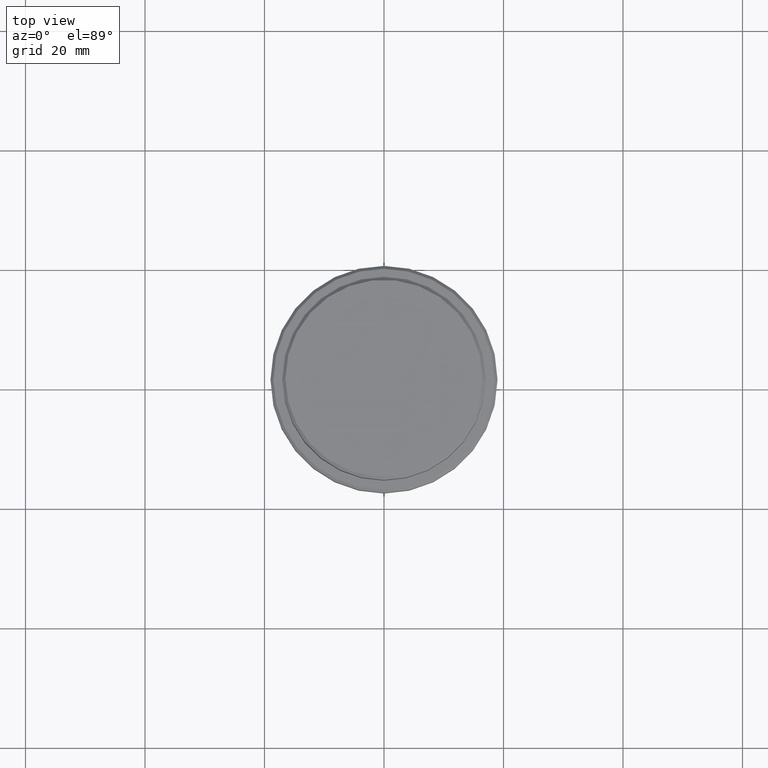
[diagram: clean part render]
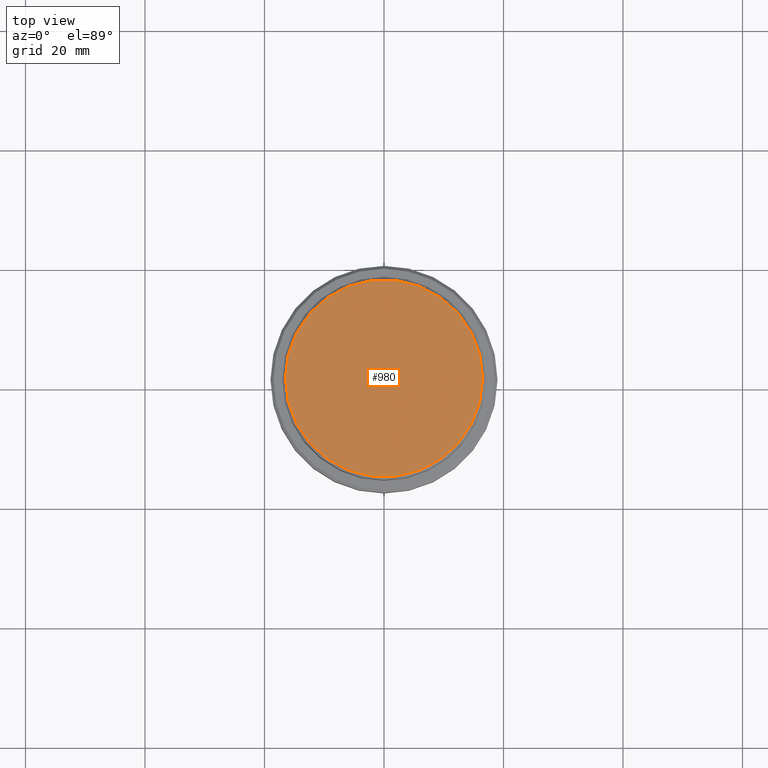
[diagram: same view with one face highlighted and labeled with its STEP entity id]
A machine part, top view. The second image highlights one B-rep face of the part: STEP entity #980.
In plain terms, the highlighted planar face has unit normal (0, -0, 1).
Its self-contained STEP definition (entity closure, byte-faithful):
#32 = DIRECTION ( 'NONE',  ( 1.000000000000000000, 0.000000000000000000, 0.000000000000000000 ) ) ;
#63 = EDGE_CURVE ( 'NONE', #1303, #1077, #246, .T. ) ;
#80 = CARTESIAN_POINT ( 'NONE',  ( 0.000000000000000000, 0.000000000000000000, 0.000000000000000000 ) ) ;
#157 = EDGE_CURVE ( 'NONE', #1077, #1303, #342, .T. ) ;
#214 = CARTESIAN_POINT ( 'NONE',  ( 16.50000000000004263, 2.051283388571818859E-15, 0.000000000000000000 ) ) ;
#246 = CIRCLE ( 'NONE', #1405, 16.50000000000004263 ) ;
#342 = CIRCLE ( 'NONE', #1115, 16.50000000000004263 ) ;
#401 = DIRECTION ( 'NONE',  ( 1.000000000000000000, 0.000000000000000000, 0.000000000000000000 ) ) ;
#501 = CARTESIAN_POINT ( 'NONE',  ( -16.50000000000004263, 0.000000000000000000, 0.000000000000000000 ) ) ;
#524 = ORIENTED_EDGE ( 'NONE', *, *, #63, .T. ) ;
#546 = ORIENTED_EDGE ( 'NONE', *, *, #157, .T. ) ;
#555 = CARTESIAN_POINT ( 'NONE',  ( 0.000000000000000000, 0.000000000000000000, 0.000000000000000000 ) ) ;
#577 = CARTESIAN_POINT ( 'NONE',  ( 0.000000000000000000, 0.000000000000000000, 0.000000000000000000 ) ) ;
#615 = FACE_OUTER_BOUND ( 'NONE', #1280, .T. ) ;
#639 = DIRECTION ( 'NONE',  ( 1.000000000000000000, 0.000000000000000000, 0.000000000000000000 ) ) ;
#745 = DIRECTION ( 'NONE',  ( -0.000000000000000000, -0.000000000000000000, 1.000000000000000000 ) ) ;
#958 = DIRECTION ( 'NONE',  ( 0.000000000000000000, -0.000000000000000000, 1.000000000000000000 ) ) ;
#980 = ADVANCED_FACE ( 'NONE', ( #615 ), #1057, .T. ) ;
#1020 = DIRECTION ( 'NONE',  ( -0.000000000000000000, -0.000000000000000000, 1.000000000000000000 ) ) ;
#1057 = PLANE ( 'NONE',  #1071 ) ;
#1071 = AXIS2_PLACEMENT_3D ( 'NONE', #80, #958, #401 ) ;
#1077 = VERTEX_POINT ( 'NONE', #501 ) ;
#1115 = AXIS2_PLACEMENT_3D ( 'NONE', #577, #1020, #32 ) ;
#1280 = EDGE_LOOP ( 'NONE', ( #546, #524 ) ) ;
#1303 = VERTEX_POINT ( 'NONE', #214 ) ;
#1405 = AXIS2_PLACEMENT_3D ( 'NONE', #555, #745, #639 ) ;